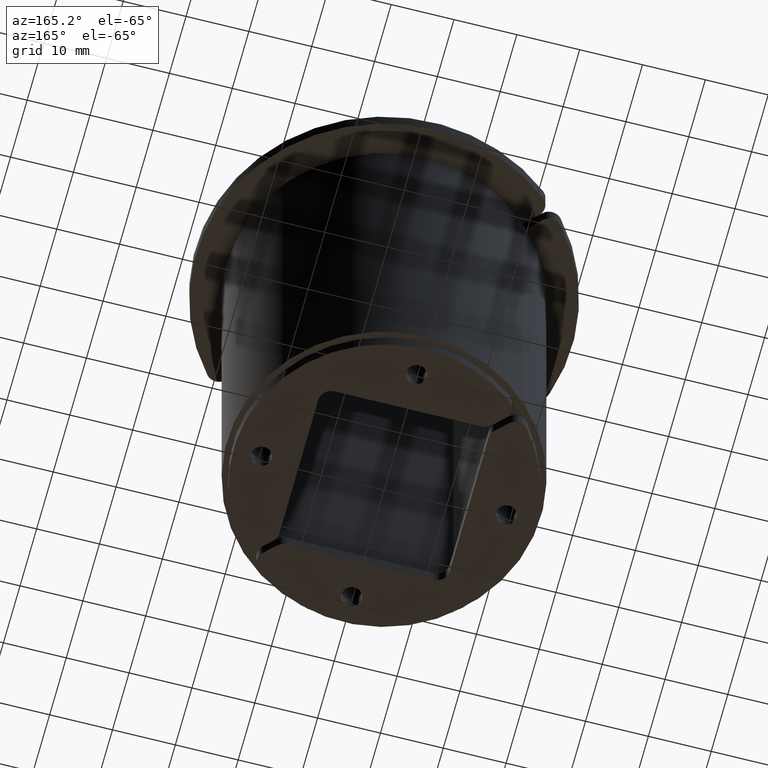
[diagram: clean part render]
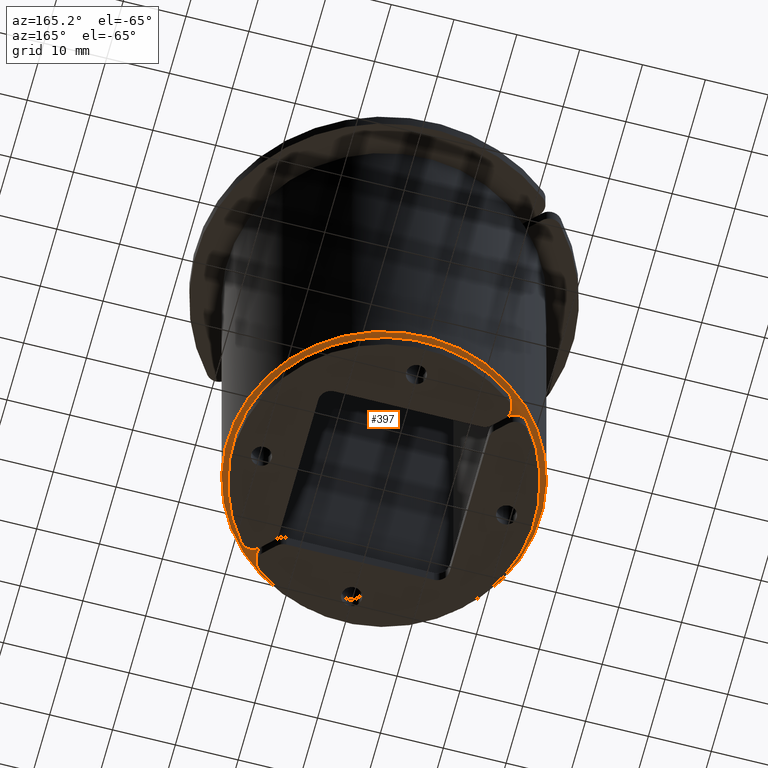
[diagram: same view with one face highlighted and labeled with its STEP entity id]
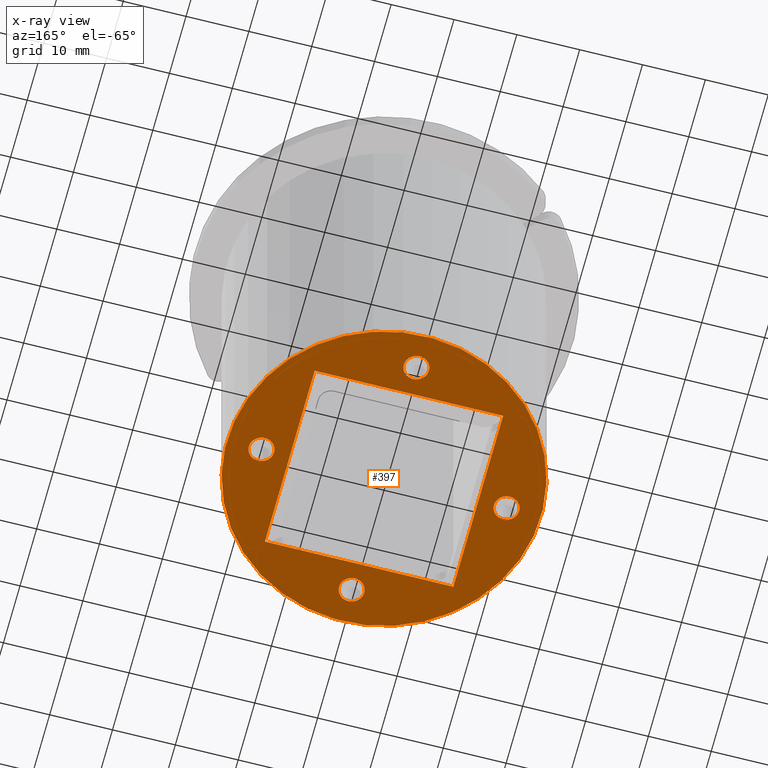
[diagram: x-ray of the same camera — body ghosted, the highlighted face saturated]
A machine part, auxiliary view. The second image highlights one B-rep face of the part: STEP entity #397.
The next image is the same camera in x-ray: the body ghosted, the highlighted face saturated — about 0% of this face is hidden behind the body in this view.
In plain terms, the highlighted planar face has unit normal (0, 0, 1).
Its self-contained STEP definition (entity closure, byte-faithful):
#112=CARTESIAN_POINT('',(-8.656638E-013,-21.500000000000377,-65.0));
#113=VERTEX_POINT('',#112);
#114=CARTESIAN_POINT('',(-8.187895E-013,-19.500000000000377,-65.0));
#115=DIRECTION('',(0.0,0.0,-1.0));
#116=DIRECTION('',(0.0,1.0,0.0));
#117=AXIS2_PLACEMENT_3D('',#114,#115,#116);
#118=CIRCLE('',#117,2.0);
#119=EDGE_CURVE('',#113,#113,#118,.T.);
#140=CARTESIAN_POINT('',(-19.500000000000423,-1.999999999999914,-65.0));
#141=VERTEX_POINT('',#140);
#142=CARTESIAN_POINT('',(-19.500000000000377,8.604228E-014,-65.0));
#143=DIRECTION('',(0.0,0.0,-1.0));
#144=DIRECTION('',(0.0,1.0,0.0));
#145=AXIS2_PLACEMENT_3D('',#142,#143,#144);
#146=CIRCLE('',#145,2.0);
#147=EDGE_CURVE('',#141,#141,#146,.T.);
#178=CARTESIAN_POINT('',(-15.000000000000695,-15.00000000000002,-65.0));
#179=VERTEX_POINT('',#178);
#186=CARTESIAN_POINT('',(-15.0,14.999999999999982,-65.0));
#187=VERTEX_POINT('',#186);
#188=CARTESIAN_POINT('',(-15.000000000000698,-15.00000000000002,-65.0));
#189=DIRECTION('',(0.0,1.0,0.0));
#190=VECTOR('',#189,30.0);
#191=LINE('',#188,#190);
#192=EDGE_CURVE('',#179,#187,#191,.T.);
#216=CARTESIAN_POINT('',(15.0,-15.0,-65.0));
#217=VERTEX_POINT('',#216);
#224=CARTESIAN_POINT('',(14.999999999999288,-15.000000000000719,-65.0));
#225=DIRECTION('',(-1.0,0.0,0.0));
#226=VECTOR('',#225,29.999999999999982);
#227=LINE('',#224,#226);
#228=EDGE_CURVE('',#217,#179,#227,.T.);
#239=CARTESIAN_POINT('',(21.500000000000007,2.449294E-016,-65.0));
#240=VERTEX_POINT('',#239);
#241=CARTESIAN_POINT('',(19.500000000000007,0.0,-65.0));
#242=DIRECTION('',(0.0,0.0,1.0));
#243=DIRECTION('',(-1.0,0.0,0.0));
#244=AXIS2_PLACEMENT_3D('',#241,#242,#243);
#245=CIRCLE('',#244,2.0);
#246=EDGE_CURVE('',#240,#240,#245,.T.);
#267=CARTESIAN_POINT('',(2.0,19.500000000000011,-65.0));
#268=VERTEX_POINT('',#267);
#269=CARTESIAN_POINT('',(0.0,19.500000000000011,-65.0));
#270=DIRECTION('',(0.0,0.0,1.0));
#271=DIRECTION('',(-1.0,0.0,0.0));
#272=AXIS2_PLACEMENT_3D('',#269,#270,#271);
#273=CIRCLE('',#272,2.0);
#274=EDGE_CURVE('',#268,#268,#273,.T.);
#304=CARTESIAN_POINT('',(15.0,14.999999999999982,-65.0));
#305=VERTEX_POINT('',#304);
#306=CARTESIAN_POINT('',(15.0,14.999999999999982,-65.0));
#307=DIRECTION('',(-1.0,0.0,0.0));
#308=VECTOR('',#307,30.0);
#309=LINE('',#306,#308);
#310=EDGE_CURVE('',#305,#187,#309,.T.);
#333=CARTESIAN_POINT('',(15.0,-15.0,-65.0));
#334=DIRECTION('',(0.0,1.0,0.0));
#335=VECTOR('',#334,29.999999999999982);
#336=LINE('',#333,#335);
#337=EDGE_CURVE('',#217,#305,#336,.T.);
#359=CARTESIAN_POINT('',(-17.677669529663671,17.677669529663717,-65.0));
#360=VERTEX_POINT('',#359);
#361=CARTESIAN_POINT('',(0.0,0.0,-65.0));
#362=DIRECTION('',(0.0,0.0,-1.0));
#363=DIRECTION('',(0.707106781186547,-0.707106781186548,0.0));
#364=AXIS2_PLACEMENT_3D('',#361,#362,#363);
#365=CIRCLE('',#364,24.999999999999996);
#366=EDGE_CURVE('',#360,#360,#365,.T.);
#371=CARTESIAN_POINT('',(8.799229512261409,8.799229434159782,-65.0));
#372=DIRECTION('',(0.0,0.0,1.0));
#373=DIRECTION('',(1.0,0.0,0.0));
#374=AXIS2_PLACEMENT_3D('',#371,#372,#373);
#375=PLANE('',#374);
#376=ORIENTED_EDGE('',*,*,#366,.T.);
#377=EDGE_LOOP('',(#376));
#378=FACE_OUTER_BOUND('',#377,.T.);
#379=ORIENTED_EDGE('',*,*,#147,.F.);
#380=EDGE_LOOP('',(#379));
#381=FACE_BOUND('',#380,.T.);
#382=ORIENTED_EDGE('',*,*,#119,.F.);
#383=EDGE_LOOP('',(#382));
#384=FACE_BOUND('',#383,.T.);
#385=ORIENTED_EDGE('',*,*,#246,.T.);
#386=EDGE_LOOP('',(#385));
#387=FACE_BOUND('',#386,.T.);
#388=ORIENTED_EDGE('',*,*,#274,.T.);
#389=EDGE_LOOP('',(#388));
#390=FACE_BOUND('',#389,.T.);
#391=ORIENTED_EDGE('',*,*,#192,.F.);
#392=ORIENTED_EDGE('',*,*,#228,.F.);
#393=ORIENTED_EDGE('',*,*,#337,.T.);
#394=ORIENTED_EDGE('',*,*,#310,.T.);
#395=EDGE_LOOP('',(#391,#392,#393,#394));
#396=FACE_BOUND('',#395,.T.);
#397=ADVANCED_FACE('',(#378,#381,#384,#387,#390,#396),#375,.F.);